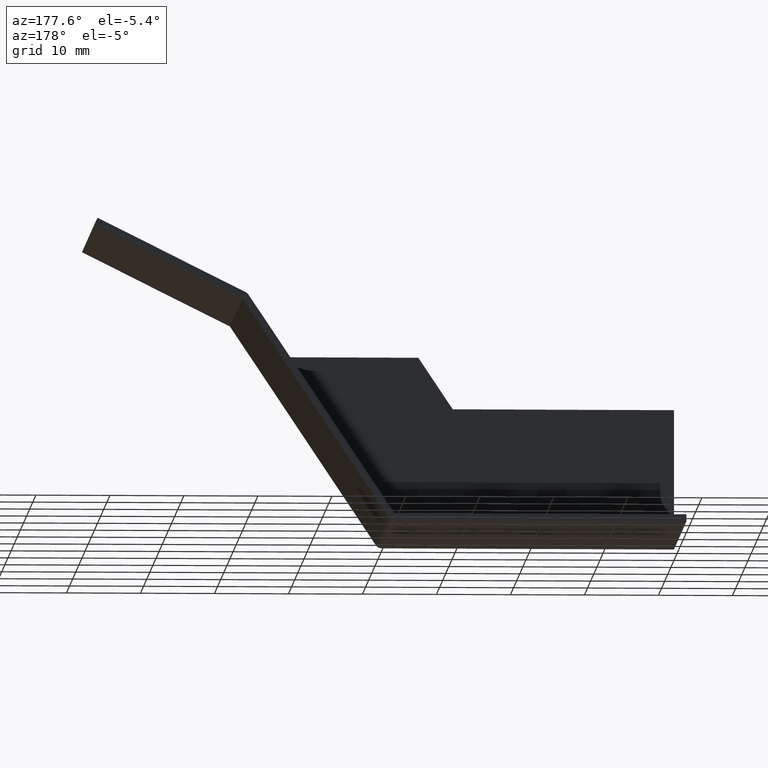
[diagram: clean part render]
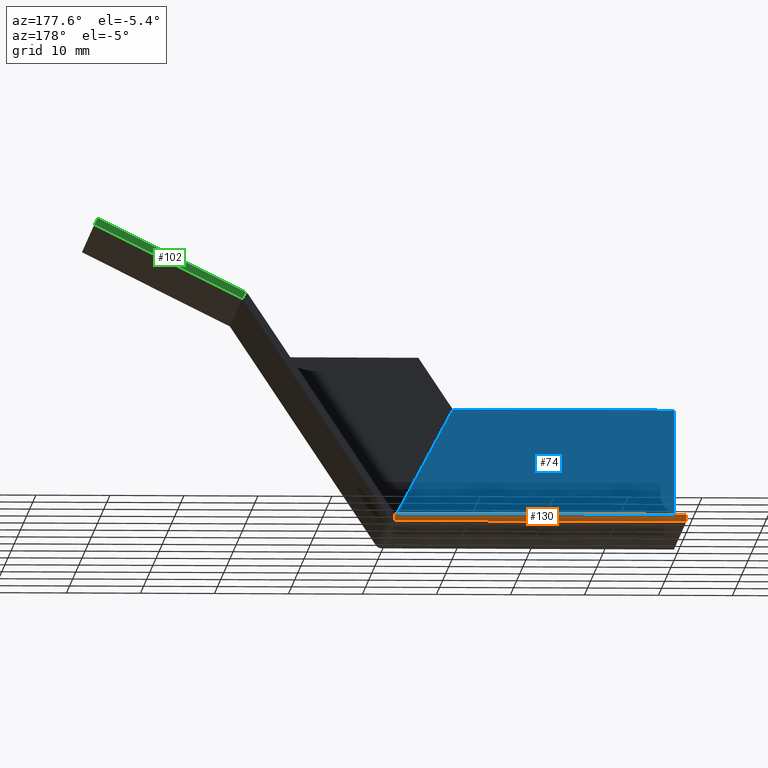
[diagram: same view with three faces highlighted in distinct colors, each labeled with its STEP entity id]
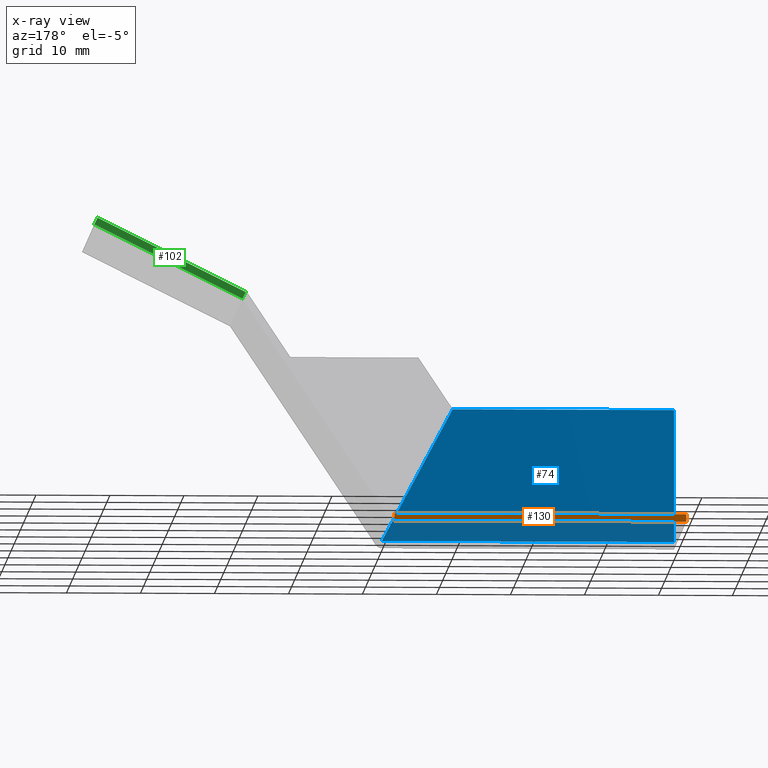
[diagram: x-ray of the same camera — body ghosted, the three highlighted faces saturated]
A machine part, auxiliary view with three faces highlighted in distinct colors.
The next image is the same camera in x-ray (body ghosted, the three faces saturated) — at least one of them is partly hidden behind the body in this view.
Their STEP definitions:

[orange] entity #130 — the highlighted planar face has unit normal (0, 1, 0).
#130 = ADVANCED_FACE( '', ( #260 ), #261, .T. );
#260 = FACE_OUTER_BOUND( '', #406, .T. );
#261 = PLANE( '', #407 );
#406 = EDGE_LOOP( '', ( #711, #712, #713, #714 ) );
#407 = AXIS2_PLACEMENT_3D( '', #715, #716, #717 );
#711 = ORIENTED_EDGE( '', *, *, #873, .F. );
#712 = ORIENTED_EDGE( '', *, *, #765, .T. );
#713 = ORIENTED_EDGE( '', *, *, #868, .T. );
#714 = ORIENTED_EDGE( '', *, *, #782, .T. );
#715 = CARTESIAN_POINT( '', ( 0.000000000000000, 0.000000000000000, 0.000000000000000 ) );
#716 = DIRECTION( '', ( 0.000000000000000, 1.00000000000000, 0.000000000000000 ) );
#717 = DIRECTION( '', ( -1.00000000000000, 0.000000000000000, 0.000000000000000 ) );
#765 = EDGE_CURVE( '', #887, #888, #889, .T. );
#782 = EDGE_CURVE( '', #919, #917, #920, .T. );
#868 = EDGE_CURVE( '', #888, #919, #1034, .T. );
#873 = EDGE_CURVE( '', #887, #917, #1039, .F. );
#887 = VERTEX_POINT( '', #1053 );
#888 = VERTEX_POINT( '', #1054 );
#889 = LINE( '', #1055, #1056 );
#917 = VERTEX_POINT( '', #1094 );
#919 = VERTEX_POINT( '', #1097 );
#920 = LINE( '', #1098, #1099 );
#1034 = LINE( '', #1284, #1285 );
#1039 = LINE( '', #1292, #1293 );
#1053 = CARTESIAN_POINT( '', ( 39.4637458739951, 0.000000000000000, 1.00000000000000 ) );
#1054 = CARTESIAN_POINT( '', ( 39.4637458739951, 0.000000000000000, 0.000000000000000 ) );
#1055 = CARTESIAN_POINT( '', ( 39.4637458739951, 0.000000000000000, 1.00000000000000 ) );
#1056 = VECTOR( '', #1308, 1000.00000000000 );
#1094 = CARTESIAN_POINT( '', ( 0.000000000000000, 0.000000000000000, 1.00000000000000 ) );
#1097 = CARTESIAN_POINT( '', ( 0.000000000000000, 0.000000000000000, 0.000000000000000 ) );
#1098 = CARTESIAN_POINT( '', ( 0.000000000000000, 0.000000000000000, 0.000000000000000 ) );
#1099 = VECTOR( '', #1326, 1000.00000000000 );
#1284 = CARTESIAN_POINT( '', ( 0.000000000000000, 0.000000000000000, 0.000000000000000 ) );
#1285 = VECTOR( '', #1400, 1000.00000000000 );
#1292 = CARTESIAN_POINT( '', ( 0.000000000000000, 0.000000000000000, 1.00000000000000 ) );
#1293 = VECTOR( '', #1403, 1000.00000000000 );
#1308 = DIRECTION( '', ( 0.000000000000000, 0.000000000000000, -1.00000000000000 ) );
#1326 = DIRECTION( '', ( 0.000000000000000, 0.000000000000000, 1.00000000000000 ) );
#1400 = DIRECTION( '', ( -1.00000000000000, 0.000000000000000, 0.000000000000000 ) );
#1403 = DIRECTION( '', ( 1.00000000000000, 0.000000000000000, 0.000000000000000 ) );

[blue] entity #74 — the highlighted planar face has unit normal (0, 1, 0).
#74 = ADVANCED_FACE( '', ( #176 ), #177, .T. );
#176 = FACE_OUTER_BOUND( '', #303, .T. );
#177 = PLANE( '', #304 );
#303 = EDGE_LOOP( '', ( #487, #488, #489, #490 ) );
#304 = AXIS2_PLACEMENT_3D( '', #491, #492, #493 );
#487 = ORIENTED_EDGE( '', *, *, #790, .F. );
#488 = ORIENTED_EDGE( '', *, *, #791, .F. );
#489 = ORIENTED_EDGE( '', *, *, #792, .T. );
#490 = ORIENTED_EDGE( '', *, *, #793, .T. );
#491 = CARTESIAN_POINT( '', ( 0.000000000000000, -40.0000000000000, 1.00000000000000 ) );
#492 = DIRECTION( '', ( 0.000000000000000, 1.00000000000000, 0.000000000000000 ) );
#493 = DIRECTION( '', ( 0.000000000000000, 0.000000000000000, 1.00000000000000 ) );
#790 = EDGE_CURVE( '', #931, #932, #933, .T. );
#791 = EDGE_CURVE( '', #934, #931, #935, .T. );
#792 = EDGE_CURVE( '', #934, #936, #937, .T. );
#793 = EDGE_CURVE( '', #936, #932, #938, .T. );
#931 = VERTEX_POINT( '', #1122 );
#932 = VERTEX_POINT( '', #1123 );
#933 = LINE( '', #1124, #1125 );
#934 = VERTEX_POINT( '', #1126 );
#935 = LINE( '', #1127, #1128 );
#936 = VERTEX_POINT( '', #1129 );
#937 = LINE( '', #1130, #1131 );
#938 = LINE( '', #1132, #1133 );
#1122 = CARTESIAN_POINT( '', ( 39.4626755064781, -40.0000000000000, 1.00200000000000 ) );
#1123 = CARTESIAN_POINT( '', ( 29.8867412287385, -40.0000000000000, 18.8947968681439 ) );
#1124 = CARTESIAN_POINT( '', ( 30.6771467270640, -40.0000000000000, 17.4179106850506 ) );
#1125 = VECTOR( '', #1333, 1000.00000000000 );
#1126 = CARTESIAN_POINT( '', ( 2.62811452284410E-020, -40.0000000000000, 1.00200000000000 ) );
#1127 = CARTESIAN_POINT( '', ( 0.000000000000000, -40.0000000000000, 1.00200000000000 ) );
#1128 = VECTOR( '', #1334, 1000.00000000000 );
#1129 = CARTESIAN_POINT( '', ( 0.000000000000000, -40.0000000000000, 18.8947968681439 ) );
#1130 = CARTESIAN_POINT( '', ( 0.000000000000000, -40.0000000000000, 1.00000000000000 ) );
#1131 = VECTOR( '', #1335, 1000.00000000000 );
#1132 = CARTESIAN_POINT( '', ( 0.000000000000000, -40.0000000000000, 18.8947968681439 ) );
#1133 = VECTOR( '', #1336, 1000.00000000000 );
#1333 = DIRECTION( '', ( -0.471857925531415, 0.000000000000000, 0.881674598768270 ) );
#1334 = DIRECTION( '', ( 1.00000000000000, 0.000000000000000, -4.12104772138090E-018 ) );
#1335 = DIRECTION( '', ( 0.000000000000000, 0.000000000000000, 1.00000000000000 ) );
#1336 = DIRECTION( '', ( 1.00000000000000, 0.000000000000000, -4.12104772138090E-018 ) );

[green] entity #102 — the highlighted planar face has unit normal (0, 1, 0).
#102 = ADVANCED_FACE( '', ( #218 ), #219, .T. );
#218 = FACE_OUTER_BOUND( '', #364, .T. );
#219 = PLANE( '', #365 );
#364 = EDGE_LOOP( '', ( #596, #597, #598, #599 ) );
#365 = AXIS2_PLACEMENT_3D( '', #600, #601, #602 );
#596 = ORIENTED_EDGE( '', *, *, #842, .T. );
#597 = ORIENTED_EDGE( '', *, *, #843, .T. );
#598 = ORIENTED_EDGE( '', *, *, #844, .F. );
#599 = ORIENTED_EDGE( '', *, *, #845, .F. );
#600 = CARTESIAN_POINT( '', ( 0.000000000000000, 0.000000000000000, 0.000000000000000 ) );
#601 = DIRECTION( '', ( 0.000000000000000, 1.00000000000000, 0.000000000000000 ) );
#602 = DIRECTION( '', ( -1.00000000000000, 0.000000000000000, 0.000000000000000 ) );
#842 = EDGE_CURVE( '', #1003, #970, #1004, .T. );
#843 = EDGE_CURVE( '', #970, #944, #1005, .T. );
#844 = EDGE_CURVE( '', #1006, #944, #1007, .F. );
#845 = EDGE_CURVE( '', #1003, #1006, #1008, .T. );
#944 = VERTEX_POINT( '', #1140 );
#970 = VERTEX_POINT( '', #1187 );
#1003 = VERTEX_POINT( '', #1235 );
#1004 = LINE( '', #1236, #1237 );
#1005 = LINE( '', #1238, #1239 );
#1006 = VERTEX_POINT( '', #1240 );
#1007 = LINE( '', #1241, #1242 );
#1008 = LINE( '', #1243, #1244 );
#1140 = CARTESIAN_POINT( '', ( 59.5532614606056, 0.000000000000000, 30.8946647190527 ) );
#1187 = CARTESIAN_POINT( '', ( 60.0004750561069, 0.000000000000000, 30.0002375280534 ) );
#1235 = CARTESIAN_POINT( '', ( 80.0000000000000, 0.000000000000000, 40.0000000000000 ) );
#1236 = CARTESIAN_POINT( '', ( 60.0000000000000, 0.000000000000000, 30.0000000000000 ) );
#1237 = VECTOR( '', #1382, 1000.00000000000 );
#1238 = CARTESIAN_POINT( '', ( 60.0004750561069, 0.000000000000000, 30.0002375280534 ) );
#1239 = VECTOR( '', #1383, 1000.00000000000 );
#1240 = CARTESIAN_POINT( '', ( 79.5527864045000, 0.000000000000000, 40.8944271909999 ) );
#1241 = CARTESIAN_POINT( '', ( 59.5527864045000, 0.000000000000000, 30.8944271909999 ) );
#1242 = VECTOR( '', #1384, 1000.00000000000 );
#1243 = CARTESIAN_POINT( '', ( 80.0000000000000, 0.000000000000000, 40.0000000000000 ) );
#1244 = VECTOR( '', #1385, 1000.00000000000 );
#1382 = DIRECTION( '', ( -0.894427190999916, 0.000000000000000, -0.447213595499958 ) );
#1383 = DIRECTION( '', ( -0.447213595501347, 0.000000000000000, 0.894427190999221 ) );
#1384 = DIRECTION( '', ( 0.894427190999916, 0.000000000000000, 0.447213595499958 ) );
#1385 = DIRECTION( '', ( -0.447213595499958, 0.000000000000000, 0.894427190999916 ) );